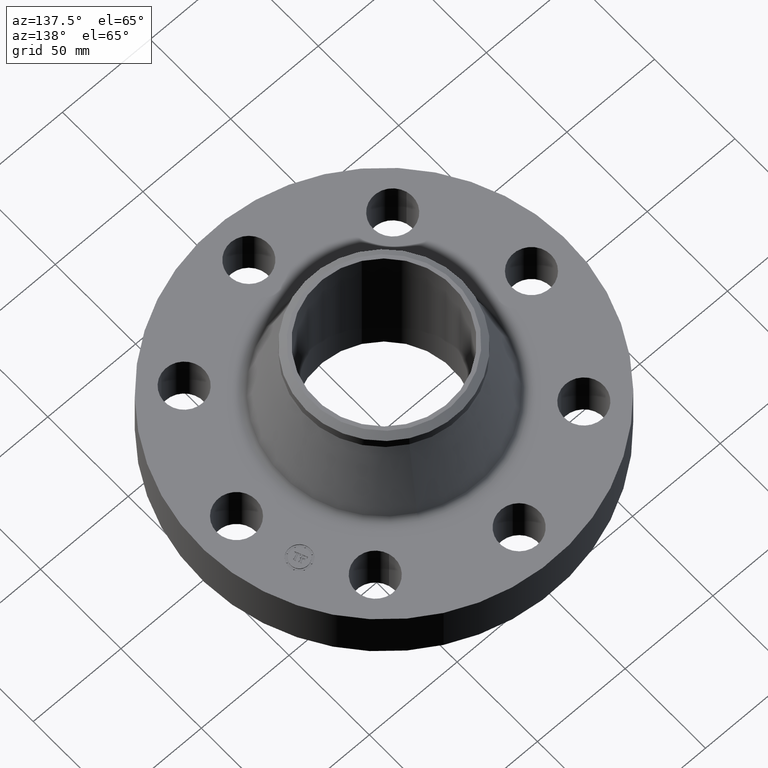
[diagram: clean part render]
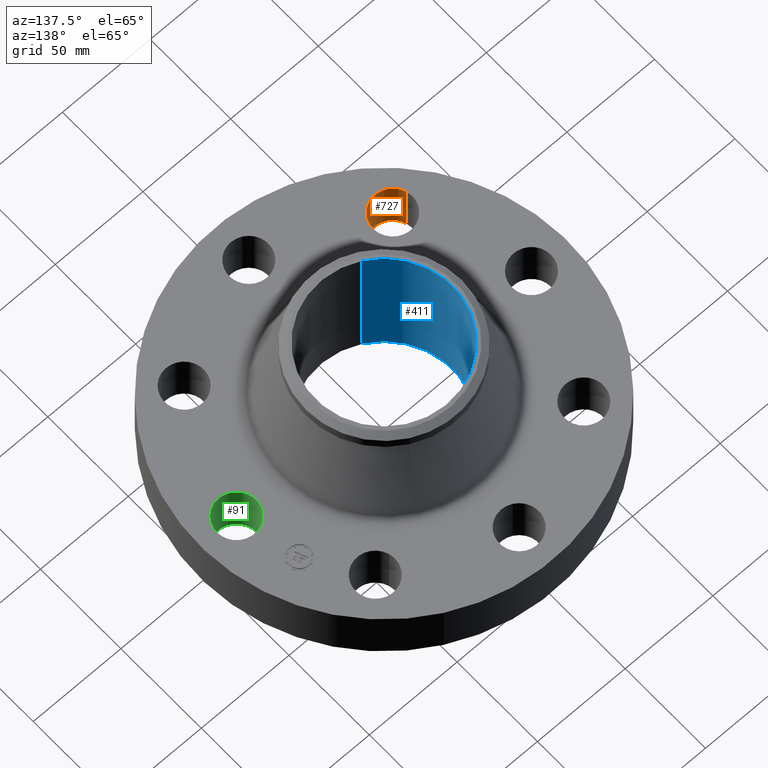
[diagram: same view with three faces highlighted in distinct colors, each labeled with its STEP entity id]
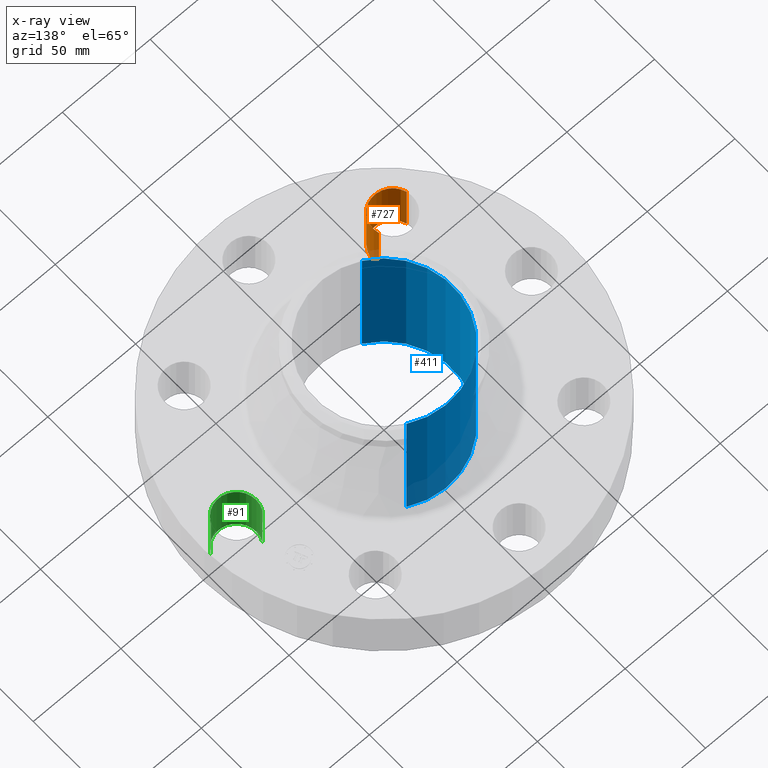
[diagram: x-ray of the same camera — body ghosted, the three highlighted faces saturated]
A machine part, auxiliary view with three faces highlighted in distinct colors.
The next image is the same camera in x-ray (body ghosted, the three faces saturated) — at least one of them is partly hidden behind the body in this view.
Their STEP definitions:

[orange] entity #727 — the highlighted cylindrical surface (edge-blend (fillet) strip) has radius 11.176 mm, axis along (-0, 0, -1).
#479=AXIS2_PLACEMENT_3D('Circle Axis2P3D',#477,#478,$) ;
#700=AXIS2_PLACEMENT_3D('Cylinder Axis2P3D',#697,#698,#699) ;
#718=AXIS2_PLACEMENT_3D('Circle Axis2P3D',#716,#717,$) ;
#477=CARTESIAN_POINT('Axis2P3D Location',(-2.34052344574,-2.34052344574,0.)) ;
#481=CARTESIAN_POINT('Vertex',(-1.91832160854,-2.21664605203,0.)) ;
#483=CARTESIAN_POINT('Vertex',(-2.76272528293,-2.46440083944,0.)) ;
#697=CARTESIAN_POINT('Axis2P3D Location',(-2.34052344574,-2.34052344574,1.24606299213)) ;
#702=CARTESIAN_POINT('Line Origine',(-1.91832160854,-2.21664605203,0.625000000003)) ;
#706=CARTESIAN_POINT('Vertex',(-1.91832160854,-2.21664605203,1.25000000001)) ;
#709=CARTESIAN_POINT('Line Origine',(-2.76272528293,-2.46440083944,0.625000000003)) ;
#713=CARTESIAN_POINT('Vertex',(-2.76272528293,-2.46440083944,1.25000000001)) ;
#716=CARTESIAN_POINT('Axis2P3D Location',(-2.34052344574,-2.34052344574,1.25000000001)) ;
#478=DIRECTION('Axis2P3D Direction',(0.,0.,-0.0393700787402)) ;
#698=DIRECTION('Axis2P3D Direction',(-0.,0.,-0.0393700787402)) ;
#699=DIRECTION('Axis2P3D XDirection',(-0.0377775444876,-0.0110842335096,0.)) ;
#703=DIRECTION('Vector Direction',(0.,0.,-0.0393700787402)) ;
#710=DIRECTION('Vector Direction',(0.,0.,-0.0393700787402)) ;
#717=DIRECTION('Axis2P3D Direction',(-0.,0.,-0.0393700787402)) ;
#704=VECTOR('Line Direction',#703,0.0393700787402) ;
#711=VECTOR('Line Direction',#710,0.0393700787402) ;
#722=ORIENTED_EDGE('',*,*,#708,.F.) ;
#723=ORIENTED_EDGE('',*,*,#485,.T.) ;
#724=ORIENTED_EDGE('',*,*,#715,.T.) ;
#725=ORIENTED_EDGE('',*,*,#720,.F.) ;
#727=ADVANCED_FACE('PartBody',(#726),#701,.F.) ;
#480=CIRCLE('generated circle',#479,0.440000000002) ;
#719=CIRCLE('generated circle',#718,0.440000000002) ;
#701=CYLINDRICAL_SURFACE('generated cylinder',#700,0.440000000002) ;
#485=EDGE_CURVE('',#482,#484,#480,.T.) ;
#708=EDGE_CURVE('',#482,#707,#705,.F.) ;
#715=EDGE_CURVE('',#484,#714,#712,.F.) ;
#720=EDGE_CURVE('',#707,#714,#719,.T.) ;
#721=EDGE_LOOP('',(#722,#723,#724,#725)) ;
#726=FACE_OUTER_BOUND('',#721,.T.) ;
#705=LINE('Line',#702,#704) ;
#712=LINE('Line',#709,#711) ;
#482=VERTEX_POINT('',#481) ;
#484=VERTEX_POINT('',#483) ;
#707=VERTEX_POINT('',#706) ;
#714=VERTEX_POINT('',#713) ;

[blue] entity #411 — the highlighted cylindrical surface (partial cylindrical patch) has radius 38.9636 mm, axis along (0, 0, -1).
#356=AXIS2_PLACEMENT_3D('Circle Axis2P3D',#354,#355,$) ;
#384=AXIS2_PLACEMENT_3D('Cylinder Axis2P3D',#381,#382,#383) ;
#395=AXIS2_PLACEMENT_3D('Circle Axis2P3D',#393,#394,$) ;
#354=CARTESIAN_POINT('Axis2P3D Location',(0.,0.,3.25000000001)) ;
#358=CARTESIAN_POINT('Vertex',(-0.735438776222,-1.34621164995,3.25000000001)) ;
#360=CARTESIAN_POINT('Vertex',(0.735438776222,1.34621164995,3.25000000001)) ;
#381=CARTESIAN_POINT('Axis2P3D Location',(0.,0.,1.62500000001)) ;
#386=CARTESIAN_POINT('Line Origine',(-0.735438776222,-1.34621164995,1.62500000001)) ;
#390=CARTESIAN_POINT('Vertex',(-0.735438776222,-1.34621164995,-6.43404839468E-015)) ;
#393=CARTESIAN_POINT('Axis2P3D Location',(0.,0.,-6.71378962923E-015)) ;
#397=CARTESIAN_POINT('Vertex',(0.735438776222,1.34621164995,-6.43404839468E-015)) ;
#400=CARTESIAN_POINT('Line Origine',(0.735438776222,1.34621164995,1.62500000001)) ;
#355=DIRECTION('Axis2P3D Direction',(0.,0.,-0.0393700787402)) ;
#382=DIRECTION('Axis2P3D Direction',(0.,0.,-0.0393700787402)) ;
#383=DIRECTION('Axis2P3D XDirection',(0.0188750212049,0.0345504945626,0.)) ;
#387=DIRECTION('Vector Direction',(0.,0.,-0.0393700787402)) ;
#394=DIRECTION('Axis2P3D Direction',(0.,0.,-0.0393700787402)) ;
#401=DIRECTION('Vector Direction',(0.,0.,-0.0393700787402)) ;
#388=VECTOR('Line Direction',#387,0.0393700787402) ;
#402=VECTOR('Line Direction',#401,0.0393700787402) ;
#406=ORIENTED_EDGE('',*,*,#362,.F.) ;
#407=ORIENTED_EDGE('',*,*,#392,.T.) ;
#408=ORIENTED_EDGE('',*,*,#399,.T.) ;
#409=ORIENTED_EDGE('',*,*,#404,.F.) ;
#411=ADVANCED_FACE('PartBody',(#410),#385,.F.) ;
#357=CIRCLE('generated circle',#356,1.53400000001) ;
#396=CIRCLE('generated circle',#395,1.53400000001) ;
#385=CYLINDRICAL_SURFACE('generated cylinder',#384,1.53400000001) ;
#362=EDGE_CURVE('',#359,#361,#357,.T.) ;
#392=EDGE_CURVE('',#359,#391,#389,.T.) ;
#399=EDGE_CURVE('',#391,#398,#396,.T.) ;
#404=EDGE_CURVE('',#361,#398,#403,.T.) ;
#405=EDGE_LOOP('',(#406,#407,#408,#409)) ;
#410=FACE_OUTER_BOUND('',#405,.T.) ;
#389=LINE('Line',#386,#388) ;
#403=LINE('Line',#400,#402) ;
#359=VERTEX_POINT('',#358) ;
#361=VERTEX_POINT('',#360) ;
#391=VERTEX_POINT('',#390) ;
#398=VERTEX_POINT('',#397) ;

[green] entity #91 — the highlighted cylindrical surface (edge-blend (fillet) strip) has radius 11.176 mm, axis along (0, -0, -1).
#38=AXIS2_PLACEMENT_3D('Cylinder Axis2P3D',#35,#36,#37) ;
#77=AXIS2_PLACEMENT_3D('Circle Axis2P3D',#75,#76,$) ;
#82=AXIS2_PLACEMENT_3D('Circle Axis2P3D',#80,#81,$) ;
#35=CARTESIAN_POINT('Axis2P3D Location',(3.31000000001,0.,1.24606299213)) ;
#40=CARTESIAN_POINT('Line Origine',(2.92386367278,0.210947236987,0.625000000003)) ;
#44=CARTESIAN_POINT('Vertex',(2.92386367278,0.210947236987,0.)) ;
#46=CARTESIAN_POINT('Vertex',(2.92386367278,0.210947236987,1.25000000001)) ;
#53=CARTESIAN_POINT('Vertex',(3.69613632725,-0.210947236987,0.)) ;
#56=CARTESIAN_POINT('Line Origine',(3.69613632725,-0.210947236987,0.625000000003)) ;
#60=CARTESIAN_POINT('Vertex',(3.69613632725,-0.210947236987,1.25000000001)) ;
#75=CARTESIAN_POINT('Axis2P3D Location',(3.31000000001,0.,0.)) ;
#80=CARTESIAN_POINT('Axis2P3D Location',(3.31000000001,0.,1.25000000001)) ;
#36=DIRECTION('Axis2P3D Direction',(0.,-0.,-0.0393700787402)) ;
#37=DIRECTION('Axis2P3D XDirection',(0.0345504945626,-0.0188750212049,0.)) ;
#41=DIRECTION('Vector Direction',(0.,0.,-0.0393700787402)) ;
#57=DIRECTION('Vector Direction',(0.,0.,-0.0393700787402)) ;
#76=DIRECTION('Axis2P3D Direction',(0.,-0.,-0.0393700787402)) ;
#81=DIRECTION('Axis2P3D Direction',(0.,-0.,-0.0393700787402)) ;
#42=VECTOR('Line Direction',#41,0.0393700787402) ;
#58=VECTOR('Line Direction',#57,0.0393700787402) ;
#86=ORIENTED_EDGE('',*,*,#62,.F.) ;
#87=ORIENTED_EDGE('',*,*,#79,.T.) ;
#88=ORIENTED_EDGE('',*,*,#48,.T.) ;
#89=ORIENTED_EDGE('',*,*,#84,.F.) ;
#91=ADVANCED_FACE('PartBody',(#90),#39,.F.) ;
#78=CIRCLE('generated circle',#77,0.440000000002) ;
#83=CIRCLE('generated circle',#82,0.440000000002) ;
#39=CYLINDRICAL_SURFACE('generated cylinder',#38,0.440000000002) ;
#48=EDGE_CURVE('',#45,#47,#43,.F.) ;
#62=EDGE_CURVE('',#54,#61,#59,.F.) ;
#79=EDGE_CURVE('',#54,#45,#78,.T.) ;
#84=EDGE_CURVE('',#61,#47,#83,.T.) ;
#85=EDGE_LOOP('',(#86,#87,#88,#89)) ;
#90=FACE_OUTER_BOUND('',#85,.T.) ;
#43=LINE('Line',#40,#42) ;
#59=LINE('Line',#56,#58) ;
#45=VERTEX_POINT('',#44) ;
#47=VERTEX_POINT('',#46) ;
#54=VERTEX_POINT('',#53) ;
#61=VERTEX_POINT('',#60) ;